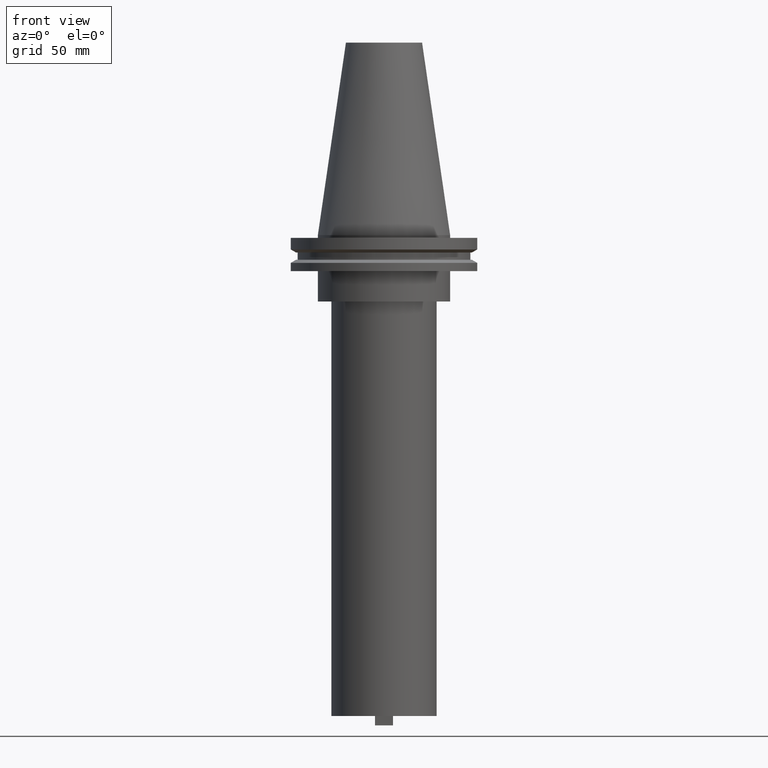
[diagram: clean part render]
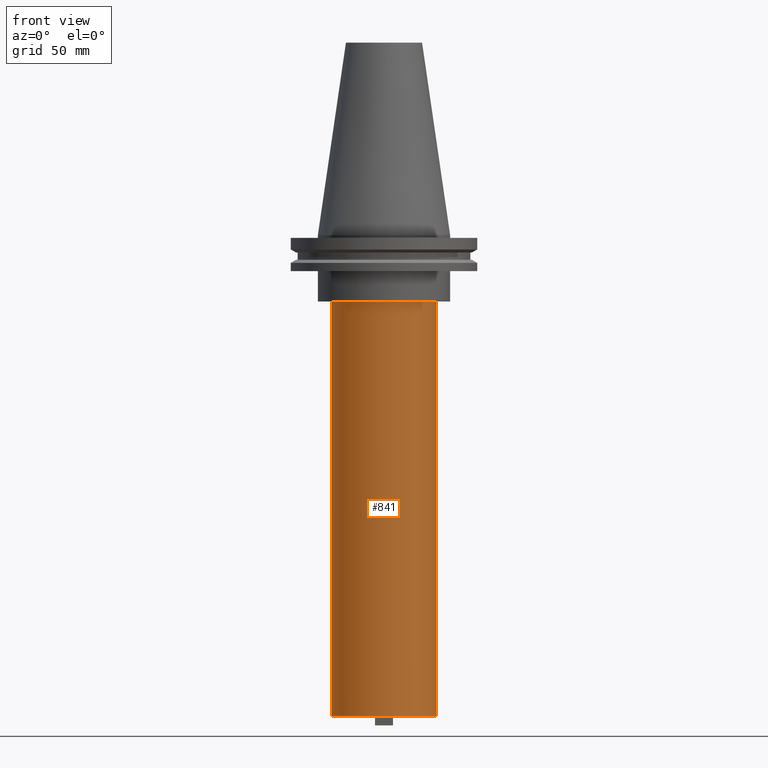
[diagram: same view with one face highlighted and labeled with its STEP entity id]
A machine part, front view. The second image highlights one B-rep face of the part: STEP entity #841.
In plain terms, the highlighted cylindrical surface (partial cylindrical patch) has radius 27.8 mm, axis along (-0, -0, 1).
Its self-contained STEP definition (entity closure, byte-faithful):
#8 = VERTEX_POINT ( 'NONE', #165 ) ;
#24 = CARTESIAN_POINT ( 'NONE',  ( 0.000000000000000000, 0.000000000000000000, -35.04999999999999716 ) ) ;
#39 = DIRECTION ( 'NONE',  ( 1.000000000000000000, 0.000000000000000000, 0.000000000000000000 ) ) ;
#52 = DIRECTION ( 'NONE',  ( -0.000000000000000000, -0.000000000000000000, 1.000000000000000000 ) ) ;
#63 = VECTOR ( 'NONE', #955, 1000.000000000000000 ) ;
#96 = CARTESIAN_POINT ( 'NONE',  ( -27.80000000000000071, 3.404518101629642167E-15, -254.0000000000000000 ) ) ;
#141 = EDGE_LOOP ( 'NONE', ( #361, #707, #223, #605 ) ) ;
#165 = CARTESIAN_POINT ( 'NONE',  ( 27.80000000000000426, 0.000000000000000000, -35.04999999999999716 ) ) ;
#223 = ORIENTED_EDGE ( 'NONE', *, *, #797, .T. ) ;
#260 = DIRECTION ( 'NONE',  ( 0.000000000000000000, 0.000000000000000000, -1.000000000000000000 ) ) ;
#272 = CARTESIAN_POINT ( 'NONE',  ( 27.80000000000000426, 0.000000000000000000, 0.000000000000000000 ) ) ;
#284 = DIRECTION ( 'NONE',  ( -0.000000000000000000, -0.000000000000000000, 1.000000000000000000 ) ) ;
#305 = VERTEX_POINT ( 'NONE', #664 ) ;
#361 = ORIENTED_EDGE ( 'NONE', *, *, #801, .F. ) ;
#383 = DIRECTION ( 'NONE',  ( 1.000000000000000000, 0.000000000000000000, 0.000000000000000000 ) ) ;
#422 = CARTESIAN_POINT ( 'NONE',  ( 27.80000000000000071, 0.000000000000000000, -254.0000000000000000 ) ) ;
#435 = VERTEX_POINT ( 'NONE', #422 ) ;
#471 = AXIS2_PLACEMENT_3D ( 'NONE', #24, #260, #686 ) ;
#527 = CARTESIAN_POINT ( 'NONE',  ( -27.80000000000000426, 3.404518101629642562E-15, 0.000000000000000000 ) ) ;
#549 = DIRECTION ( 'NONE',  ( -0.000000000000000000, -0.000000000000000000, 1.000000000000000000 ) ) ;
#603 = AXIS2_PLACEMENT_3D ( 'NONE', #969, #52, #383 ) ;
#605 = ORIENTED_EDGE ( 'NONE', *, *, #709, .T. ) ;
#664 = CARTESIAN_POINT ( 'NONE',  ( -27.80000000000000426, 3.404518101629642562E-15, -35.04999999999999716 ) ) ;
#675 = CIRCLE ( 'NONE', #603, 27.80000000000000071 ) ;
#686 = DIRECTION ( 'NONE',  ( 1.000000000000000000, 0.000000000000000000, 0.000000000000000000 ) ) ;
#690 = LINE ( 'NONE', #272, #777 ) ;
#707 = ORIENTED_EDGE ( 'NONE', *, *, #892, .T. ) ;
#709 = EDGE_CURVE ( 'NONE', #8, #305, #789, .T. ) ;
#718 = CYLINDRICAL_SURFACE ( 'NONE', #1085, 27.80000000000000426 ) ;
#777 = VECTOR ( 'NONE', #284, 1000.000000000000000 ) ;
#789 = CIRCLE ( 'NONE', #471, 27.80000000000000426 ) ;
#797 = EDGE_CURVE ( 'NONE', #435, #8, #690, .T. ) ;
#800 = VERTEX_POINT ( 'NONE', #96 ) ;
#801 = EDGE_CURVE ( 'NONE', #800, #305, #946, .T. ) ;
#841 = ADVANCED_FACE ( 'NONE', ( #894 ), #718, .T. ) ;
#892 = EDGE_CURVE ( 'NONE', #800, #435, #675, .T. ) ;
#894 = FACE_OUTER_BOUND ( 'NONE', #141, .T. ) ;
#946 = LINE ( 'NONE', #527, #63 ) ;
#955 = DIRECTION ( 'NONE',  ( -0.000000000000000000, -0.000000000000000000, 1.000000000000000000 ) ) ;
#969 = CARTESIAN_POINT ( 'NONE',  ( 0.000000000000000000, 0.000000000000000000, -254.0000000000000000 ) ) ;
#1050 = CARTESIAN_POINT ( 'NONE',  ( 0.000000000000000000, 0.000000000000000000, 0.000000000000000000 ) ) ;
#1085 = AXIS2_PLACEMENT_3D ( 'NONE', #1050, #549, #39 ) ;